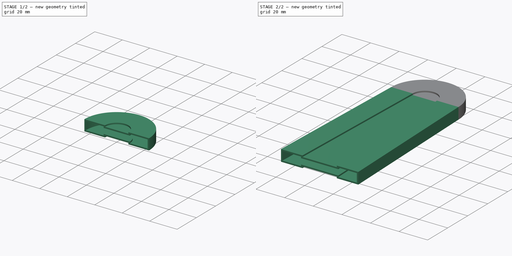
[diagram: build sequence overview — one tinted view per stage of 2, left to right]
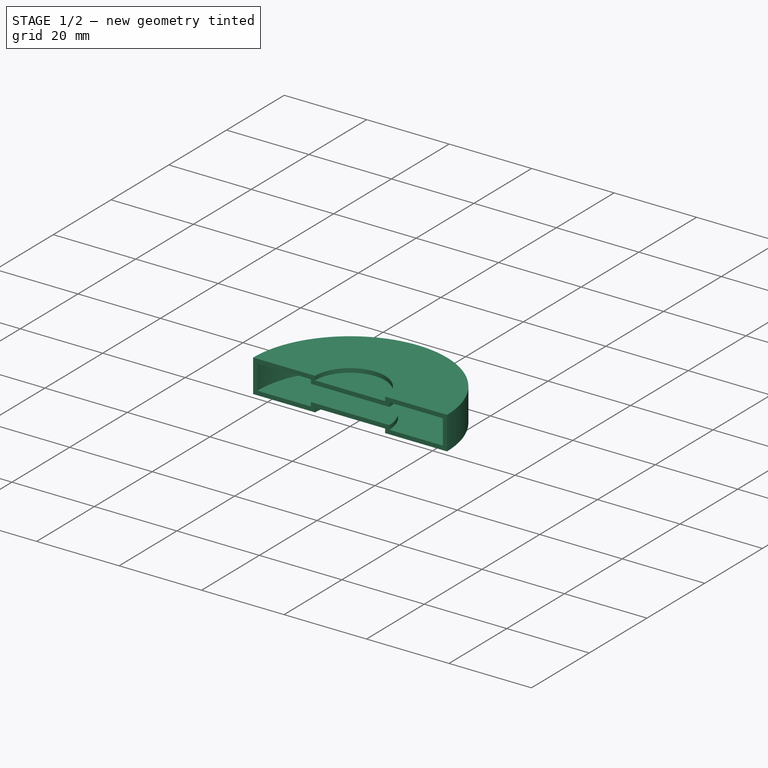
[diagram: stage 1 of 2 — iso view after this stage's code; geometry added in this stage tinted green]
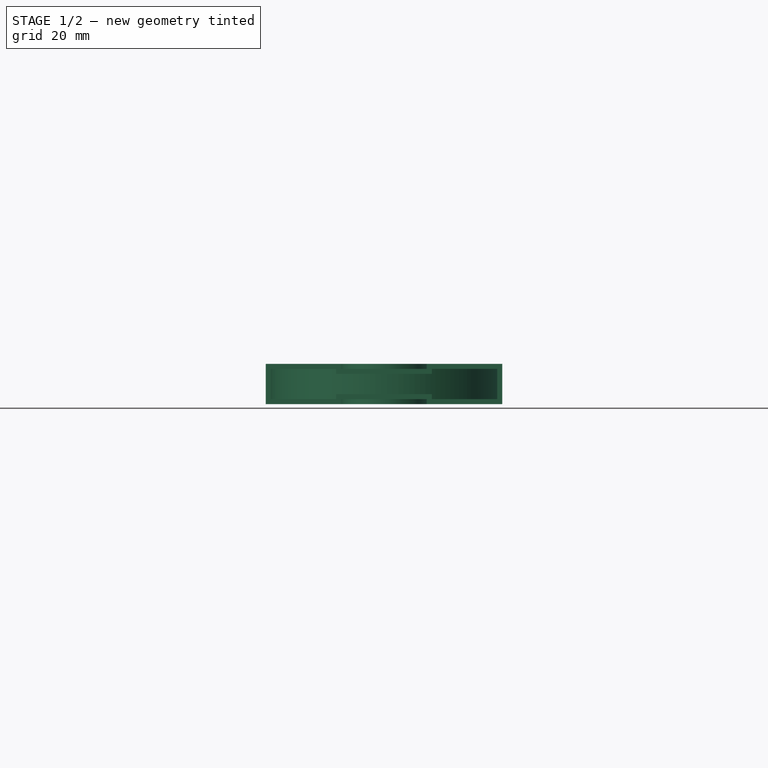
[diagram: stage 1 of 2 — front view after this stage's code; geometry added in this stage tinted green]
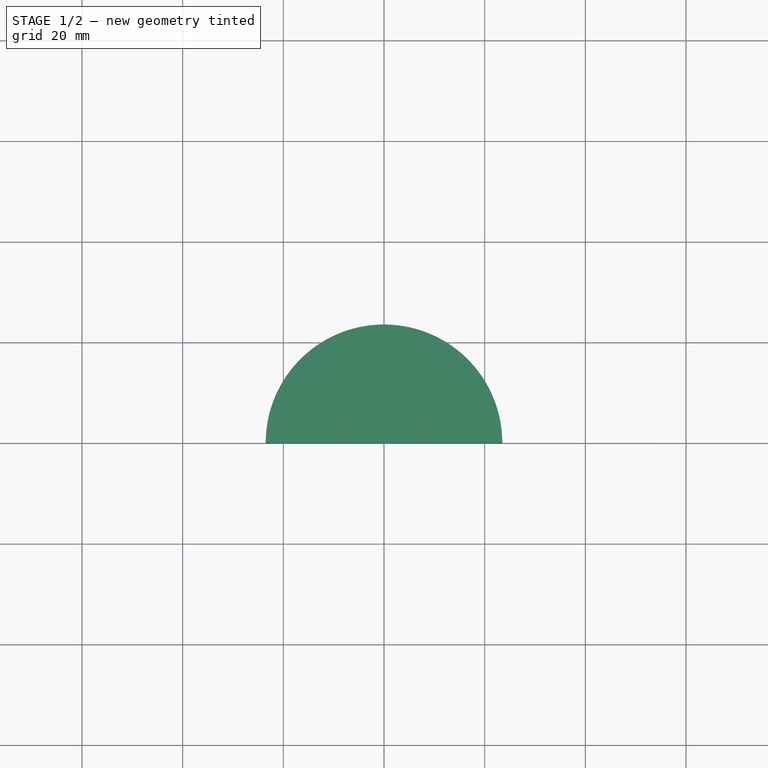
[diagram: stage 1 of 2 — top view after this stage's code; geometry added in this stage tinted green]
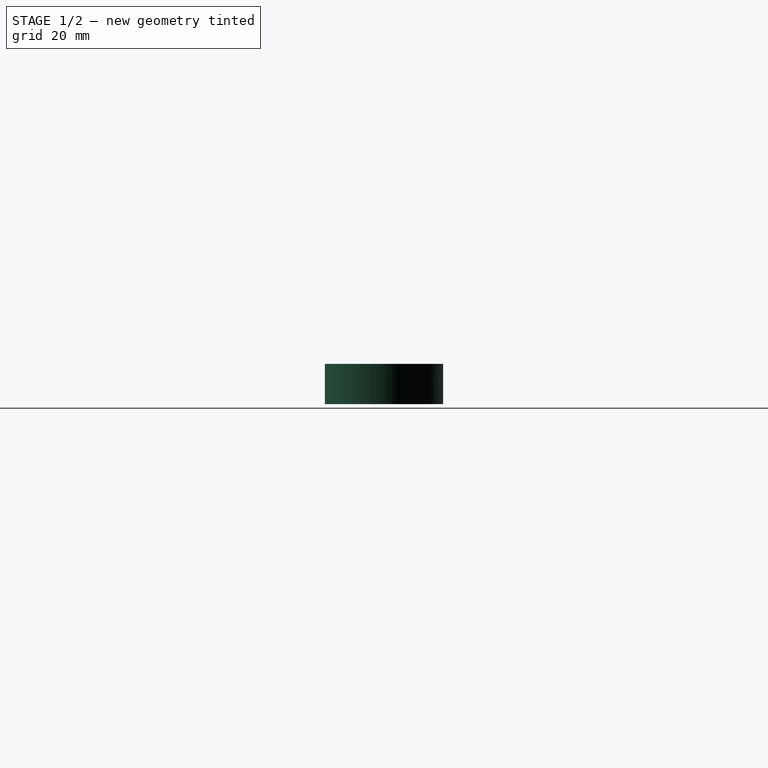
[diagram: stage 1 of 2 — right view after this stage's code; geometry added in this stage tinted green]
FCSTD DOCUMENT  (FreeCAD 0.19R24291 (Git))
Label: cover
License: All rights reserved
LicenseURL: http://en.wikipedia.org/wiki/All_rights_reserved
objects: Sketcher::SketchObject×3, Spreadsheet::Sheet×1, PartDesign::Revolution×1, Part::FeaturePython×1, PartDesign::AdditiveLoft×1, PartDesign::Body×1
note: 9 computed .brp shape members not serialized (recipe doc carries the construction recipe); baked Part::Feature solids carry a one-line shape summary decoded from their .brp

FEATURE [Spreadsheet::Sheet] Spreadsheet  label="values"
  cells = A1=shell; B1(shell)==1mm; A2=baan; B2(baan)==13mm; A3=height outer; B3(outerHeight)==6mm; A4=height inner; B4(innerHeight)==4mm
FEATURE [Sketcher::SketchObject] Sketch
  FullyConstrained = true
  MapMode = 5
  Placement = pos=(0,0,0) rot=(1,0,0;1.5708rad)
  Support = -> [XZ_Plane]
  expr: Constraints[40] = <<values>>.shell
  expr: Constraints[41] = <<values>>.shell
  expr: Constraints[42] = <<values>>.shell
  expr: Constraints[43] = <<values>>.innerHeight
  expr: Constraints[45] = <<values>>.baan
  sketch-geometry (16):
    g0: LineSegment StartX=0 StartY=2 StartZ=0 EndX=-9.5 EndY=2 EndZ=0
    g1: LineSegment StartX=-9.5 StartY=2 StartZ=0 EndX=-9.5 EndY=3 EndZ=0
    g2: LineSegment StartX=-9.5 StartY=3 StartZ=0 EndX=-22.5 EndY=3 EndZ=0
    g3: LineSegment StartX=-22.5 StartY=3 StartZ=0 EndX=-22.5 EndY=-3 EndZ=0
    g4: LineSegment StartX=-22.5 StartY=-3 StartZ=0 EndX=-9.5 EndY=-3 EndZ=0
    g5: LineSegment StartX=-9.5 StartY=-3 StartZ=0 EndX=-9.5 EndY=-2 EndZ=0
    g6: LineSegment StartX=-9.5 StartY=-2 StartZ=0 EndX=0 EndY=-2 EndZ=0
    g7: LineSegment StartX=0 StartY=-2 StartZ=0 EndX=0 EndY=-3 EndZ=0
    g8: LineSegment StartX=0 StartY=-3 StartZ=0 EndX=-8.5 EndY=-3 EndZ=0
    g9: LineSegment StartX=-8.5 StartY=-3 StartZ=0 EndX=-8.5 EndY=-4 EndZ=0
    g10: LineSegment StartX=-8.5 StartY=-4 StartZ=0 EndX=-23.5 EndY=-4 EndZ=0
    g11: LineSegment StartX=-23.5 StartY=-4 StartZ=0 EndX=-23.5 EndY=4 EndZ=0
    g12: LineSegment StartX=-23.5 StartY=4 StartZ=0 EndX=-8.5 EndY=4 EndZ=0
    g13: LineSegment StartX=-8.5 StartY=4 StartZ=0 EndX=-8.5 EndY=3 EndZ=0
    g14: LineSegment StartX=-8.5 StartY=3 StartZ=0 EndX=-1.39408e-11 EndY=3 EndZ=0
    g15: LineSegment StartX=-1.39408e-11 StartY=3 StartZ=0 EndX=0 EndY=2 EndZ=0
  constraints (47):
    c: PointOnObject(g0,g-2)
    c: Horizontal(g0)
    c: Coincident(g0,g1)
    c: Vertical(g1)
    c: Coincident(g1,g2)
    c: Horizontal(g2)
    c: Coincident(g2,g3)
    c: Vertical(g3)
    c: Coincident(g3,g4)
    c: Horizontal(g4)
    c: Coincident(g4,g5)
    c: Vertical(g5)
    c: Coincident(g5,g6)
    c: Horizontal(g6)
    c: Coincident(g6,g7)
    c: PointOnObject(g7,g-2)
    c: Vertical(g7)
    c: Coincident(g7,g8)
    c: Horizontal(g8)
    c: Coincident(g8,g9)
    c: Vertical(g9)
    c: Coincident(g9,g10)
    c: Horizontal(g10)
    c: Coincident(g10,g11)
    c: Vertical(g11)
    c: Coincident(g11,g12)
    c: Horizontal(g12)
    c: Coincident(g12,g13)
    c: Coincident(g13,g14)
    c: Horizontal(g14)
    c: Coincident(g14,g15)
    c: Vertical(g13)
    c: Equal(g1,g13)
    c: Equal(g13,g5)
    c: Equal(g5,g15)
    c: Equal(g15,g7)
    c: Equal(g7,g9)
    c: Equal(g12,g10)
    c: Equal(g14,g8)
    c: Symmetric(g0,g5,g-1)
    c: DistanceX(g11,g2) = 1
    c: DistanceY(g2,g11) = 1
    c: DistanceX(g1,g13) = 1
    c: DistanceY(g5,g0) = 4
    c: DistanceX(g0,g15) = 9.5
    c: DistanceX(g2,g1) = 13
    c: Coincident(g15,g0)
FEATURE [PartDesign::Revolution] Revolution
  Angle = 180
  Axis = (0,2e-16,1)
  Base = (0,0,0)
  Placement = pos=(0,0,0) rot=(1,0,0;1.5708rad)
  Profile = -> Sketch
  ReferenceAxis = -> Sketch [V_Axis]
  Refine = true
  Reversed = true
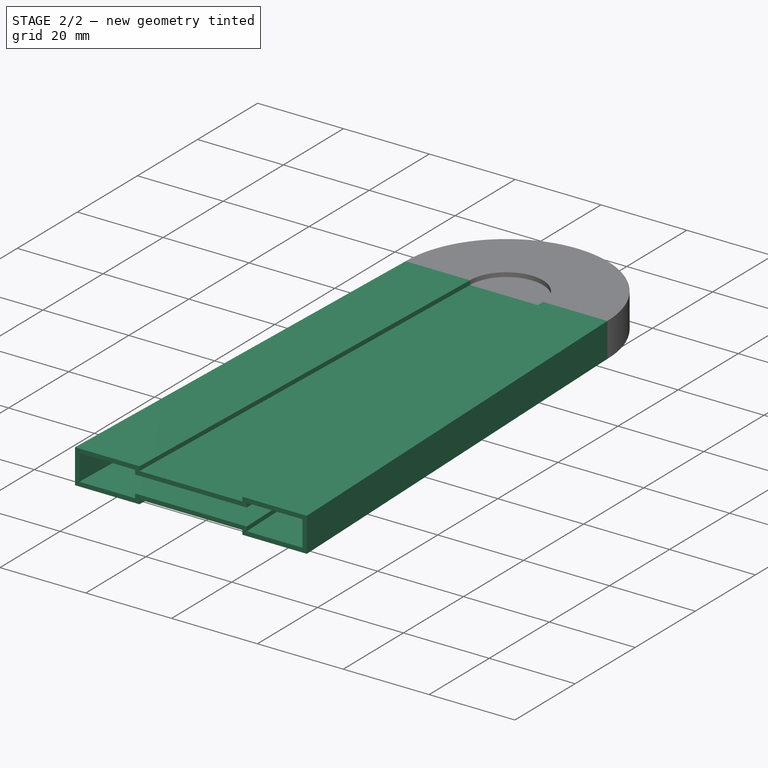
[diagram: stage 2 of 2 — iso view after this stage's code; geometry added in this stage tinted green]
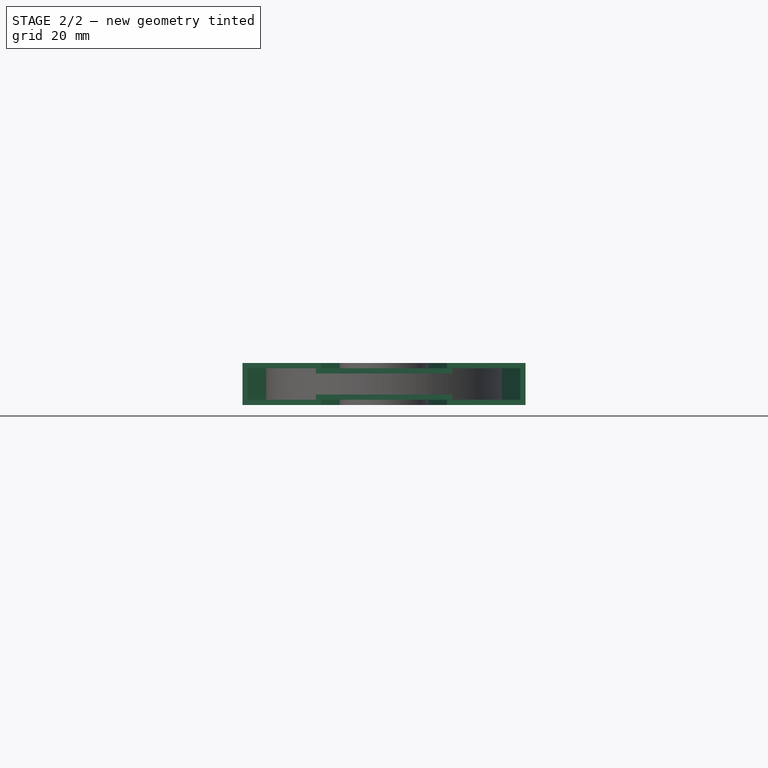
[diagram: stage 2 of 2 — front view after this stage's code; geometry added in this stage tinted green]
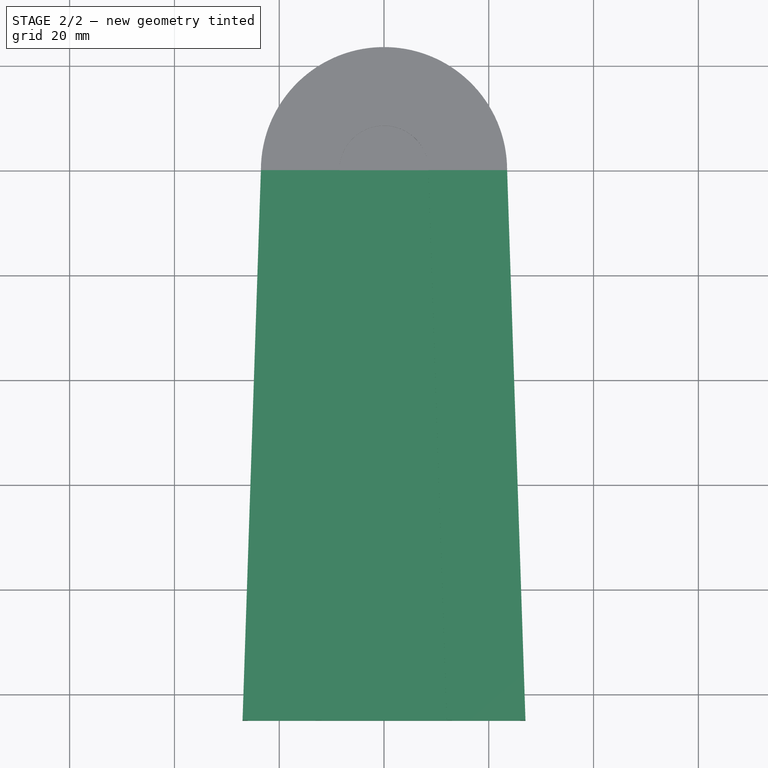
[diagram: stage 2 of 2 — top view after this stage's code; geometry added in this stage tinted green]
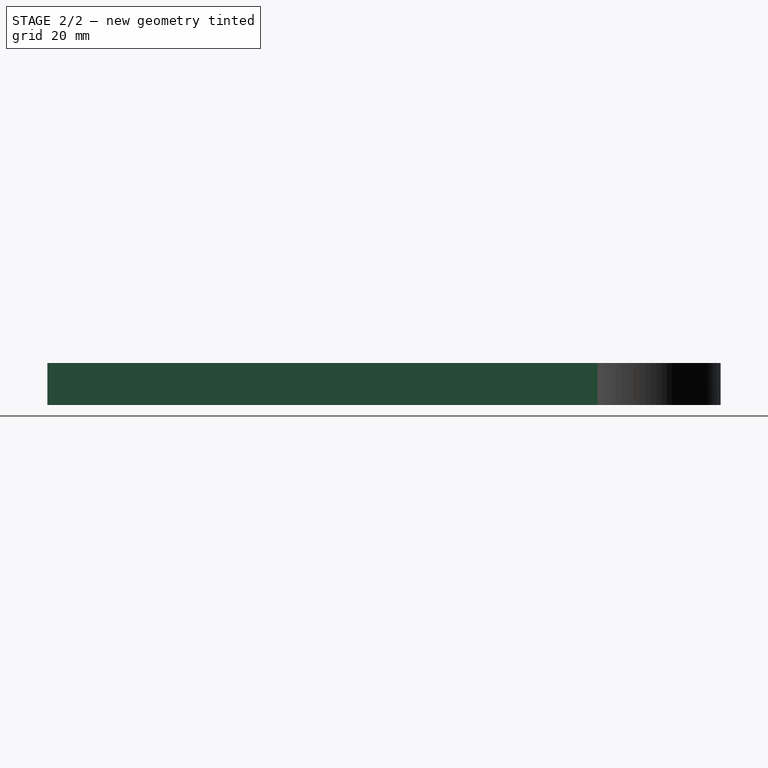
[diagram: stage 2 of 2 — right view after this stage's code; geometry added in this stage tinted green]
FEATURE [Sketcher::SketchObject] Sketch001  label="top"
  ExternalGeometry = -> [Revolution]
  FullyConstrained = true
  MapMode = 5
  Placement = pos=(0,0,0) rot=(1,0,0;1.5708rad)
  Support = -> [XZ_Plane]
  sketch-geometry (24):
    g0: LineSegment StartX=8.5 StartY=4 StartZ=0 EndX=23.5 EndY=4 EndZ=0
    g1: LineSegment StartX=23.5 StartY=4 StartZ=0 EndX=23.5 EndY=-4 EndZ=0
    g2: LineSegment StartX=23.5 StartY=-4 StartZ=0 EndX=8.5 EndY=-4 EndZ=0
    g3: LineSegment StartX=8.5 StartY=-4 StartZ=0 EndX=8.5 EndY=-3 EndZ=0
    g4: LineSegment StartX=8.5 StartY=-3 StartZ=0 EndX=-8.5 EndY=-3 EndZ=0
    g5: LineSegment StartX=-8.5 StartY=-3 StartZ=0 EndX=-8.5 EndY=-4 EndZ=0
    g6: LineSegment StartX=-8.5 StartY=-4 StartZ=0 EndX=-23.5 EndY=-4 EndZ=0
    g7: LineSegment StartX=-23.5 StartY=-4 StartZ=0 EndX=-23.5 EndY=4 EndZ=0
    g8: LineSegment StartX=-23.5 StartY=4 StartZ=0 EndX=-8.5 EndY=4 EndZ=0
    g9: LineSegment StartX=-8.5 StartY=4 StartZ=0 EndX=-8.5 EndY=3 EndZ=0
    g10: LineSegment StartX=-8.5 StartY=3 StartZ=0 EndX=8.5 EndY=3 EndZ=0
    g11: LineSegment StartX=8.5 StartY=3 StartZ=0 EndX=8.5 EndY=4 EndZ=0
    g12: LineSegment StartX=9.5 StartY=3 StartZ=0 EndX=22.5 EndY=3 EndZ=0
    g13: LineSegment StartX=22.5 StartY=3 StartZ=0 EndX=22.5 EndY=-3 EndZ=0
    g14: LineSegment StartX=22.5 StartY=-3 StartZ=0 EndX=9.5 EndY=-3 EndZ=0
    g15: LineSegment StartX=9.5 StartY=-3 StartZ=0 EndX=9.5 EndY=-2 EndZ=0
    g16: LineSegment StartX=9.5 StartY=-2 StartZ=0 EndX=-9.5 EndY=-2 EndZ=0
    g17: LineSegment StartX=-9.5 StartY=-2 StartZ=0 EndX=-9.5 EndY=-3 EndZ=0
    g18: LineSegment StartX=-9.5 StartY=-3 StartZ=0 EndX=-22.5 EndY=-3 EndZ=0
    g19: LineSegment StartX=-22.5 StartY=-3 StartZ=0 EndX=-22.5 EndY=3 EndZ=0
    g20: LineSegment StartX=-22.5 StartY=3 StartZ=0 EndX=-9.5 EndY=3 EndZ=0
    g21: LineSegment StartX=-9.5 StartY=3 StartZ=0 EndX=-9.5 EndY=2 EndZ=0
    g22: LineSegment StartX=-9.5 StartY=2 StartZ=0 EndX=9.5 EndY=2 EndZ=0
    g23: LineSegment StartX=9.5 StartY=2 StartZ=0 EndX=9.5 EndY=3 EndZ=0
  constraints (48):
    c: Coincident(g-12,g0)
    c: Coincident(g0,g-11)
    c: Coincident(g0,g1)
    c: Coincident(g1,g-10)
    c: Coincident(g1,g2)
    c: Coincident(g2,g-9)
    c: Coincident(g2,g3)
    c: Coincident(g3,g-8)
    c: Coincident(g3,g4)
    c: Coincident(g4,g-7)
    c: Coincident(g4,g5)
    c: Coincident(g5,g-6)
    c: Coincident(g5,g6)
    c: Coincident(g6,g-5)
    c: Coincident(g6,g7)
    c: Coincident(g7,g-4)
    c: Coincident(g7,g8)
    c: Coincident(g8,g-14)
    c: Coincident(g8,g9)
    c: Coincident(g9,g-14)
    c: Coincident(g9,g10)
    c: Coincident(g10,g-13)
    c: Coincident(g10,g11)
    c: Coincident(g11,g0)
    c: Coincident(g-26,g12)
    c: Coincident(g12,g-25)
    c: Coincident(g12,g13)
    c: Coincident(g13,g-24)
    c: Coincident(g13,g14)
    c: Coincident(g14,g-23)
    c: Coincident(g14,g15)
    c: Coincident(g15,g-22)
    c: Coincident(g15,g16)
    c: Coincident(g16,g-21)
    c: Coincident(g16,g17)
    c: Coincident(g17,g-20)
    c: Coincident(g17,g18)
    c: Coincident(g18,g-19)
    c: Coincident(g18,g19)
    c: Coincident(g19,g-18)
    c: Coincident(g19,g20)
    c: Coincident(g20,g-17)
    c: Coincident(g20,g21)
    c: Coincident(g21,g-16)
    c: Coincident(g21,g22)
    c: Coincident(g22,g-26)
    c: Coincident(g22,g23)
    c: Coincident(g23,g12)
FEATURE [Sketcher::SketchObject] Sketch002  label="bottom"
  AttachmentOffset = pos=(0,0,105) rot=(0,0,1;0rad)
  FullyConstrained = true
  MapMode = 5
  Placement = pos=(0,-105,-2.33e-14) rot=(1,0,0;1.5708rad)
  Support = -> [XZ_Plane]
  expr: Constraints[30] = <<values>>.innerHeight
  expr: Constraints[31] = <<values>>.outerHeight
  expr: Constraints[66] = <<values>>.shell
  expr: Constraints[32] = <<values>>.baan
  expr: Constraints[64] = <<values>>.shell
  expr: Constraints[65] = <<values>>.shell
  expr: Constraints[67] = <<values>>.shell
  sketch-geometry (24):
    g0: LineSegment StartX=-26 StartY=3 StartZ=0 EndX=-13 EndY=3 EndZ=0
    g1: LineSegment StartX=-13 StartY=3 StartZ=0 EndX=-13 EndY=2 EndZ=0
    g2: LineSegment StartX=-13 StartY=2 StartZ=0 EndX=13 EndY=2 EndZ=0
    g3: LineSegment StartX=13 StartY=2 StartZ=0 EndX=13 EndY=3 EndZ=0
    g4: LineSegment StartX=13 StartY=3 StartZ=0 EndX=26 EndY=3 EndZ=0
    g5: LineSegment StartX=26 StartY=3 StartZ=0 EndX=26 EndY=-3 EndZ=0
    g6: LineSegment StartX=26 StartY=-3 StartZ=0 EndX=13 EndY=-3 EndZ=0
    g7: LineSegment StartX=13 StartY=-3 StartZ=0 EndX=13 EndY=-2 EndZ=0
    g8: LineSegment StartX=13 StartY=-2 StartZ=0 EndX=-13 EndY=-2 EndZ=0
    g9: LineSegment StartX=-13 StartY=-2 StartZ=0 EndX=-13 EndY=-3 EndZ=0
    g10: LineSegment StartX=-13 StartY=-3 StartZ=0 EndX=-26 EndY=-3 EndZ=0
    g11: LineSegment StartX=-26 StartY=-3 StartZ=0 EndX=-26 EndY=3 EndZ=0
    g12: LineSegment StartX=-27 StartY=4 StartZ=0 EndX=-12 EndY=4 EndZ=0
    g13: LineSegment StartX=-12 StartY=4 StartZ=0 EndX=-12 EndY=3 EndZ=0
    g14: LineSegment StartX=-12 StartY=3 StartZ=0 EndX=12 EndY=3 EndZ=0
    g15: LineSegment StartX=12 StartY=3 StartZ=0 EndX=12 EndY=4 EndZ=0
    g16: LineSegment StartX=12 StartY=4 StartZ=0 EndX=27 EndY=4 EndZ=0
    g17: LineSegment StartX=27 StartY=4 StartZ=0 EndX=27 EndY=-4 EndZ=0
    g18: LineSegment StartX=27 StartY=-4 StartZ=0 EndX=12 EndY=-4 EndZ=0
    g19: LineSegment StartX=12 StartY=-4 StartZ=0 EndX=12 EndY=-3 EndZ=0
    g20: LineSegment StartX=12 StartY=-3 StartZ=0 EndX=-12 EndY=-3 EndZ=0
    g21: LineSegment StartX=-12 StartY=-3 StartZ=0 EndX=-12 EndY=-4 EndZ=0
    g22: LineSegment StartX=-12 StartY=-4 StartZ=0 EndX=-27 EndY=-4 EndZ=0
    g23: LineSegment StartX=-27 StartY=-4 StartZ=0 EndX=-27 EndY=4 EndZ=0
  constraints (68):
    c: Horizontal(g0)
    c: Coincident(g0,g1)
    c: Vertical(g1)
    c: Coincident(g1,g2)
    c: Coincident(g2,g3)
    c: Coincident(g3,g4)
    c: Horizontal(g4)
    c: Coincident(g4,g5)
    c: Coincident(g5,g6)
    c: Horizontal(g6)
    c: Coincident(g6,g7)
    c: Vertical(g7)
    c: Coincident(g7,g8)
    c: Horizontal(g8)
    c: Coincident(g8,g9)
    c: Coincident(g9,g10)
    c: Horizontal(g10)
    c: Coincident(g10,g11)
    c: Coincident(g11,g0)
    c: Vertical(g11)
    c: DistanceX(g2,g2) = 26
    c: Equal(g8,g2)
    c: Equal(g1,g9)
    c: Equal(g9,g3)
    c: Equal(g3,g7)
    c: Equal(g0,g10)
    c: Equal(g10,g4)
    c: Equal(g4,g6)
    c: Symmetric(g1,g2,g-2)
    c: Symmetric(g4,g5,g-1)
    c: DistanceY(g8,g1) = 4
    c: DistanceY(g10,g0) = 6
    c: DistanceX(g0,g0) = 13
    c: Parallel(g3,g1)
    c: Horizontal(g12)
    c: Coincident(g12,g13)
    c: Vertical(g13)
    c: Coincident(g13,g14)
    c: Coincident(g14,g15)
    c: Vertical(g15)
    c: Coincident(g15,g16)
    c: Horizontal(g16)
    c: Coincident(g16,g17)
    c: Vertical(g17)
    c: Coincident(g17,g18)
    c: Horizontal(g18)
    c: Coincident(g18,g19)
    c: Vertical(g19)
    c: Coincident(g19,g20)
    c: Horizontal(g20)
    c: Coincident(g20,g21)
    c: Vertical(g21)
    c: Coincident(g21,g22)
    c: Horizontal(g22)
    c: Coincident(g22,g23)
    c: Coincident(g23,g12)
    c: Vertical(g23)
    c: Equal(g17,g23)
    c: Equal(g22,g18)
    c: Equal(g18,g16)
    c: Equal(g13,g21)
    c: Equal(g21,g19)
    c: Symmetric(g20,g13,g-1)
    c: Symmetric(g13,g14,g-2)
    c: DistanceY(g1,g13) = 1
    c: DistanceY(g13,g12) = 1
    c: DistanceX(g9,g21) = 1
    c: DistanceX(g12,g0) = 1
FEATURE [Part::FeaturePython] WireFilter  # WARN: FeaturePython — macro-defined, semantics opaque (R4)
  AttacherType = Attacher::AttachEngine3D
  ClaimChildren = true
  FaceMaker = 0
  FixNormal = false
  FollowSource = true
  MaxWires = 25
  Normal = (0,1,0)
  OffsetFill = false
  OffsetIntersection = false
  OffsetJoin = 0
  OffsetOpenResult = false
  Scale = (1,1,1)
  SelectEdges = false
  Source = -> Sketch002
  UniformScale = 1
  UseDefault = false
  UseSelected = true
  UseSelectedEdges = false
  Version = 0.2021.10.24
  WireOrder = [2,1]
FEATURE [PartDesign::AdditiveLoft] AdditiveLoft
  BaseFeature = -> Revolution
  Closed = false
  Placement = pos=(0,0,0) rot=(1,0,0;1.5708rad)
  Profile = -> Sketch001
  Refine = true
  Ruled = false
  Sections = -> [WireFilter]
FEATURE [PartDesign::Body] Body
  Group = -> [Sketch,Revolution,Sketch001,Sketch002,WireFilter,AdditiveLoft]
  Origin = -> Origin
  Tip = -> AdditiveLoft
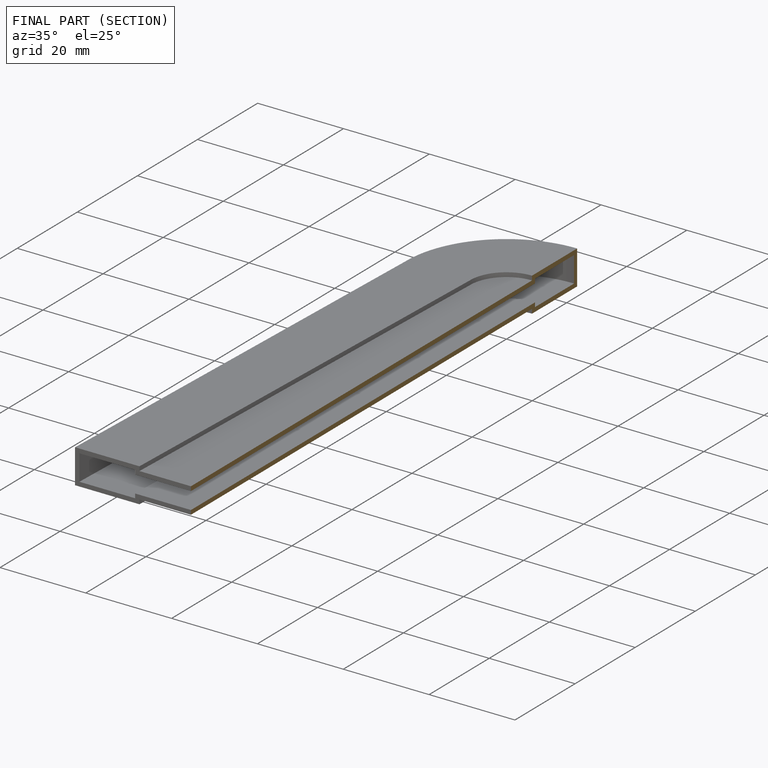
[diagram: finished part — half-section view (interior)]
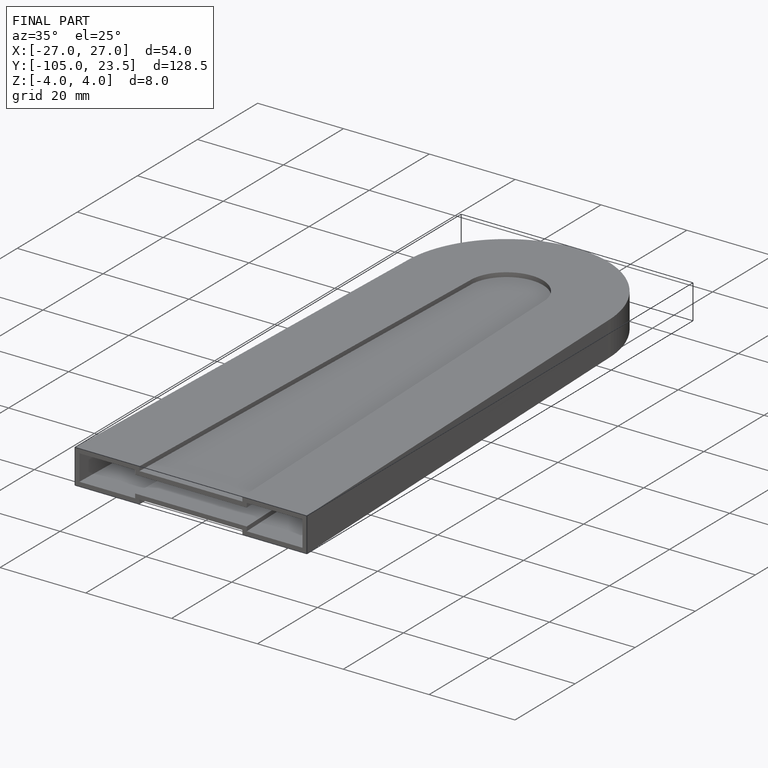
[diagram: finished part — iso view with bounding-box wireframe]
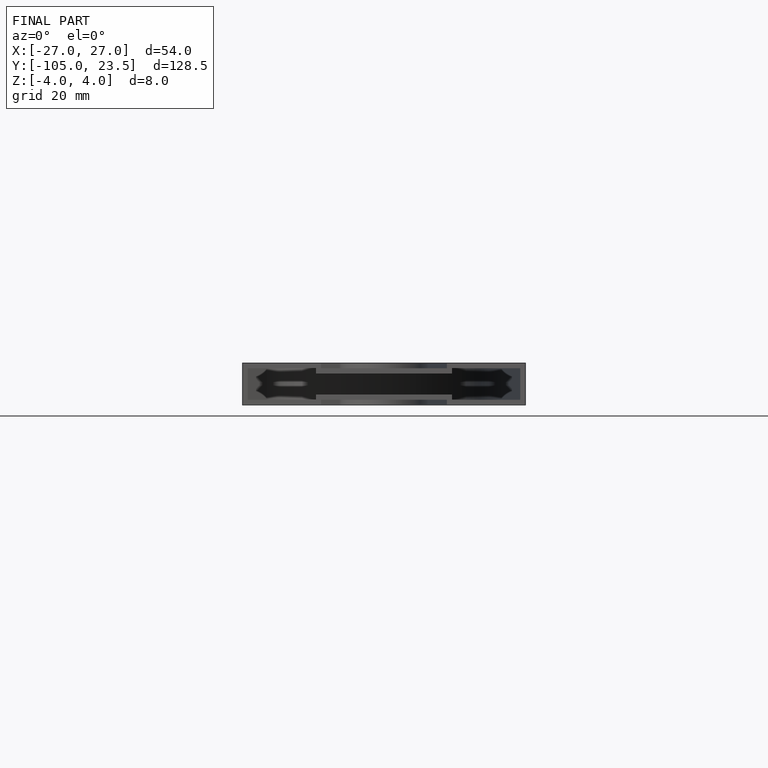
[diagram: finished part — front view with bounding-box wireframe]
